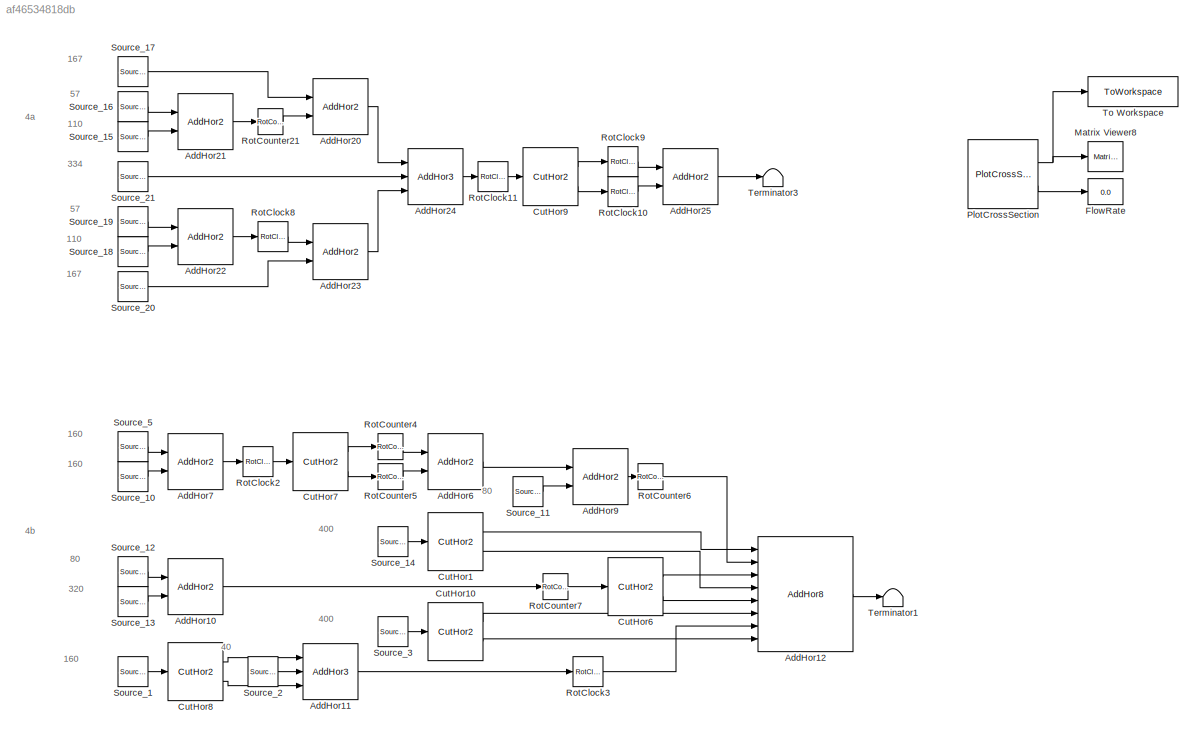
MODEL slx_af46534818db
KIND model
CONFIG AbsTol = auto
CONFIG EnableMultiTasking = off
CONFIG FixedStep = auto
CONFIG MaxStep = auto
CONFIG MinStep = auto
CONFIG RelTol = 1e-3
CONFIG SampleTimeConstraint = Unconstrained
CONFIG SolverName = VariableStepAuto
CONFIG StartTime = 0.0
CONFIG StopTime = 10.0
BLOCK [Reference] AddHor10  REF=myLib_CustomBoolean/AddHor2
  Ports = [2, 1]
  SourceBlock = myLib_CustomBoolean/AddHor2
  SourceProductName = Boolean_Custom_Library
BLOCK [Reference] AddHor11  REF=myLib_CustomBoolean/AddHor3
  Ports = [3, 1]
  SourceBlock = myLib_CustomBoolean/AddHor3
  SourceProductName = Boolean_Custom_Library
BLOCK [Reference] AddHor12  REF=myLib_CustomBoolean/AddHor8
  Ports = [8, 1]
  SourceBlock = myLib_CustomBoolean/AddHor8
  SourceProductName = Boolean_Custom_Library
BLOCK [Reference] AddHor20  REF=myLib_CustomBoolean/AddHor2
  Ports = [2, 1]
  SourceBlock = myLib_CustomBoolean/AddHor2
  SourceProductName = Boolean_Custom_Library
BLOCK [Reference] AddHor21  REF=myLib_CustomBoolean/AddHor2
  Ports = [2, 1]
  SourceBlock = myLib_CustomBoolean/AddHor2
  SourceProductName = Boolean_Custom_Library
BLOCK [Reference] AddHor22  REF=myLib_CustomBoolean/AddHor2
  Ports = [2, 1]
  SourceBlock = myLib_CustomBoolean/AddHor2
  SourceProductName = Boolean_Custom_Library
BLOCK [Reference] AddHor23  REF=myLib_CustomBoolean/AddHor2
  Ports = [2, 1]
  SourceBlock = myLib_CustomBoolean/AddHor2
  SourceProductName = Boolean_Custom_Library
BLOCK [Reference] AddHor24  REF=myLib_CustomBoolean/AddHor3
  Ports = [3, 1]
  SourceBlock = myLib_CustomBoolean/AddHor3
  SourceProductName = Boolean_Custom_Library
BLOCK [Reference] AddHor25  REF=myLib_CustomBoolean/AddHor2
  Ports = [2, 1]
  SourceBlock = myLib_CustomBoolean/AddHor2
  SourceProductName = Boolean_Custom_Library
BLOCK [Reference] AddHor6  REF=myLib_CustomBoolean/AddHor2
  Ports = [2, 1]
  SourceBlock = myLib_CustomBoolean/AddHor2
  SourceProductName = Boolean_Custom_Library
BLOCK [Reference] AddHor7  REF=myLib_CustomBoolean/AddHor2
  Ports = [2, 1]
  SourceBlock = myLib_CustomBoolean/AddHor2
  SourceProductName = Boolean_Custom_Library
BLOCK [Reference] AddHor9  REF=myLib_CustomBoolean/AddHor2
  Ports = [2, 1]
  SourceBlock = myLib_CustomBoolean/AddHor2
  SourceProductName = Boolean_Custom_Library
BLOCK [Reference] CutHor1  REF=myLib_CustomBoolean/CutHor2
  Ports = [1, 2]
  SourceBlock = myLib_CustomBoolean/CutHor2
  SourceProductName = Boolean_Custom_Library
BLOCK [Reference] CutHor10  REF=myLib_CustomBoolean/CutHor2
  Ports = [1, 2]
  SourceBlock = myLib_CustomBoolean/CutHor2
  SourceProductName = Boolean_Custom_Library
BLOCK [Reference] CutHor6  REF=myLib_CustomBoolean/CutHor2
  Ports = [1, 2]
  SourceBlock = myLib_CustomBoolean/CutHor2
  SourceProductName = Boolean_Custom_Library
BLOCK [Reference] CutHor7  REF=myLib_CustomBoolean/CutHor2
  Ports = [1, 2]
  SourceBlock = myLib_CustomBoolean/CutHor2
  SourceProductName = Boolean_Custom_Library
BLOCK [Reference] CutHor8  REF=myLib_CustomBoolean/CutHor2
  Ports = [1, 2]
  SourceBlock = myLib_CustomBoolean/CutHor2
  SourceProductName = Boolean_Custom_Library
BLOCK [Reference] CutHor9  REF=myLib_CustomBoolean/CutHor2
  Ports = [1, 2]
  SourceBlock = myLib_CustomBoolean/CutHor2
  SourceProductName = Boolean_Custom_Library
BLOCK [Display] FlowRate
  Decimation = 1
  Ports = [1]
BLOCK [Reference] Matrix Viewer8  REF=dspobslib/Matrix
Viewer
  Ports = [1]
  SourceBlock = dspobslib/Matrix\nViewer
  SourceProductBaseCode = DS
  SourceType = Matrix Viewer
BLOCK [Reference] PlotCrossSection  REF=myLib_CustomBoolean/PlotCrossSection
  Ports = [1, 2]
  SourceBlock = myLib_CustomBoolean/PlotCrossSection
  SourceProductName = Boolean_Custom_Library
  SourceType = SubSystem
BLOCK [Reference] RotClock10  REF=myLib_CustomBoolean/RotClock
  Ports = [1, 1]
  SourceBlock = myLib_CustomBoolean/RotClock
  SourceProductName = Boolean_Custom_Library
BLOCK [Reference] RotClock11  REF=myLib_CustomBoolean/RotClock
  Ports = [1, 1]
  SourceBlock = myLib_CustomBoolean/RotClock
  SourceProductName = Boolean_Custom_Library
BLOCK [Reference] RotClock2  REF=myLib_CustomBoolean/RotClock
  Ports = [1, 1]
  SourceBlock = myLib_CustomBoolean/RotClock
  SourceProductName = Boolean_Custom_Library
BLOCK [Reference] RotClock3  REF=myLib_CustomBoolean/RotClock
  Ports = [1, 1]
  SourceBlock = myLib_CustomBoolean/RotClock
  SourceProductName = Boolean_Custom_Library
BLOCK [Reference] RotClock8  REF=myLib_CustomBoolean/RotClock
  Ports = [1, 1]
  SourceBlock = myLib_CustomBoolean/RotClock
  SourceProductName = Boolean_Custom_Library
BLOCK [Reference] RotClock9  REF=myLib_CustomBoolean/RotClock
  Ports = [1, 1]
  SourceBlock = myLib_CustomBoolean/RotClock
  SourceProductName = Boolean_Custom_Library
BLOCK [Reference] RotCounter21  REF=myLib_CustomBoolean/RotCounter
  Ports = [1, 1]
  SourceBlock = myLib_CustomBoolean/RotCounter
  SourceProductName = Boolean_Custom_Library
BLOCK [Reference] RotCounter4  REF=myLib_CustomBoolean/RotCounter
  Ports = [1, 1]
  SourceBlock = myLib_CustomBoolean/RotCounter
  SourceProductName = Boolean_Custom_Library
BLOCK [Reference] RotCounter5  REF=myLib_CustomBoolean/RotCounter
  Ports = [1, 1]
  SourceBlock = myLib_CustomBoolean/RotCounter
  SourceProductName = Boolean_Custom_Library
BLOCK [Reference] RotCounter6  REF=myLib_CustomBoolean/RotCounter
  Ports = [1, 1]
  SourceBlock = myLib_CustomBoolean/RotCounter
  SourceProductName = Boolean_Custom_Library
BLOCK [Reference] RotCounter7  REF=myLib_CustomBoolean/RotCounter
  Ports = [1, 1]
  SourceBlock = myLib_CustomBoolean/RotCounter
  SourceProductName = Boolean_Custom_Library
BLOCK [Reference] Source_1  REF=myLib_CustomBoolean/Source_1
  Ports = [0, 1]
  SourceBlock = myLib_CustomBoolean/Source_1
  SourceProductName = Boolean_Custom_Library
BLOCK [Reference] Source_10  REF=myLib_CustomBoolean/Source_1
  Ports = [0, 1]
  SourceBlock = myLib_CustomBoolean/Source_1
  SourceProductName = Boolean_Custom_Library
BLOCK [Reference] Source_11  REF=myLib_CustomBoolean/Source_0
  Ports = [0, 1]
  SourceBlock = myLib_CustomBoolean/Source_0
  SourceProductName = Boolean_Custom_Library
BLOCK [Reference] Source_12  REF=myLib_CustomBoolean/Source_0
  Ports = [0, 1]
  SourceBlock = myLib_CustomBoolean/Source_0
  SourceProductName = Boolean_Custom_Library
BLOCK [Reference] Source_13  REF=myLib_CustomBoolean/Source_1
  Ports = [0, 1]
  SourceBlock = myLib_CustomBoolean/Source_1
  SourceProductName = Boolean_Custom_Library
BLOCK [Reference] Source_14  REF=myLib_CustomBoolean/Source_0
  Ports = [0, 1]
  SourceBlock = myLib_CustomBoolean/Source_0
  SourceProductName = Boolean_Custom_Library
BLOCK [Reference] Source_15  REF=myLib_CustomBoolean/Source_0
  Ports = [0, 1]
  SourceBlock = myLib_CustomBoolean/Source_0
  SourceProductName = Boolean_Custom_Library
BLOCK [Reference] Source_16  REF=myLib_CustomBoolean/Source_1
  Ports = [0, 1]
  SourceBlock = myLib_CustomBoolean/Source_1
  SourceProductName = Boolean_Custom_Library
BLOCK [Reference] Source_17  REF=myLib_CustomBoolean/Source_1
  Ports = [0, 1]
  SourceBlock = myLib_CustomBoolean/Source_1
  SourceProductName = Boolean_Custom_Library
BLOCK [Reference] Source_18  REF=myLib_CustomBoolean/Source_0
  Ports = [0, 1]
  SourceBlock = myLib_CustomBoolean/Source_0
  SourceProductName = Boolean_Custom_Library
BLOCK [Reference] Source_19  REF=myLib_CustomBoolean/Source_1
  Ports = [0, 1]
  SourceBlock = myLib_CustomBoolean/Source_1
  SourceProductName = Boolean_Custom_Library
BLOCK [Reference] Source_2  REF=myLib_CustomBoolean/Source_0
  Ports = [0, 1]
  SourceBlock = myLib_CustomBoolean/Source_0
  SourceProductName = Boolean_Custom_Library
BLOCK [Reference] Source_20  REF=myLib_CustomBoolean/Source_1
  Ports = [0, 1]
  SourceBlock = myLib_CustomBoolean/Source_1
  SourceProductName = Boolean_Custom_Library
BLOCK [Reference] Source_21  REF=myLib_CustomBoolean/Source_1
  Ports = [0, 1]
  SourceBlock = myLib_CustomBoolean/Source_1
  SourceProductName = Boolean_Custom_Library
BLOCK [Reference] Source_3  REF=myLib_CustomBoolean/Source_0
  Ports = [0, 1]
  SourceBlock = myLib_CustomBoolean/Source_0
  SourceProductName = Boolean_Custom_Library
BLOCK [Reference] Source_5  REF=myLib_CustomBoolean/Source_0
  Ports = [0, 1]
  SourceBlock = myLib_CustomBoolean/Source_0
  SourceProductName = Boolean_Custom_Library
BLOCK [Terminator] Terminator1
BLOCK [Terminator] Terminator3
BLOCK [ToWorkspace] To Workspace
  FixptAsFi = on
  MaxDataPoints = inf
  Ports = [1]
  SampleTime = 51
  VariableName = extrudateArray
ANNOTATION (root): 4a
ANNOTATION (root): 4b
ANNOTATION (root): 110
ANNOTATION (root): 160
ANNOTATION (root): 167
ANNOTATION (root): 320
ANNOTATION (root): 334
ANNOTATION (root): 400
ANNOTATION (root): 40
ANNOTATION (root): 57
ANNOTATION (root): 80
LINE AddHor10:1 -> RotCounter7:1
LINE AddHor11:1 -> RotClock3:1
LINE AddHor12:1 -> Terminator1:1
LINE AddHor20:1 -> AddHor24:1
LINE AddHor21:1 -> RotCounter21:1
LINE AddHor22:1 -> RotClock8:1
LINE AddHor23:1 -> AddHor24:3
LINE AddHor24:1 -> RotClock11:1
LINE AddHor25:1 -> Terminator3:1
LINE AddHor6:1 -> AddHor9:1
LINE AddHor7:1 -> RotClock2:1
LINE AddHor9:1 -> RotCounter6:1
LINE CutHor10:1 -> AddHor12:6
LINE CutHor10:2 -> AddHor12:8
LINE CutHor1:1 -> AddHor12:1
LINE CutHor1:2 -> AddHor12:4
LINE CutHor6:1 -> AddHor12:3
LINE CutHor6:2 -> AddHor12:5
LINE CutHor7:1 -> RotCounter4:1
LINE CutHor7:2 -> RotCounter5:1
LINE CutHor8:1 -> AddHor11:1
LINE CutHor8:2 -> AddHor11:3
LINE CutHor9:1 -> RotClock9:1
LINE CutHor9:2 -> RotClock10:1
NET PlotCrossSection:1 -> Matrix Viewer8:1, To Workspace:1
LINE PlotCrossSection:2 -> FlowRate:1
LINE RotClock10:1 -> AddHor25:2
LINE RotClock11:1 -> CutHor9:1
LINE RotClock2:1 -> CutHor7:1
LINE RotClock3:1 -> AddHor12:7
LINE RotClock8:1 -> AddHor23:1
LINE RotClock9:1 -> AddHor25:1
LINE RotCounter21:1 -> AddHor20:2
LINE RotCounter4:1 -> AddHor6:1
LINE RotCounter5:1 -> AddHor6:2
LINE RotCounter6:1 -> AddHor12:2
LINE RotCounter7:1 -> CutHor6:1
LINE Source_10:1 -> AddHor7:2
LINE Source_11:1 -> AddHor9:2
LINE Source_12:1 -> AddHor10:1
LINE Source_13:1 -> AddHor10:2
LINE Source_14:1 -> CutHor1:1
LINE Source_15:1 -> AddHor21:2
LINE Source_16:1 -> AddHor21:1
LINE Source_17:1 -> AddHor20:1
LINE Source_18:1 -> AddHor22:2
LINE Source_19:1 -> AddHor22:1
LINE Source_1:1 -> CutHor8:1
LINE Source_20:1 -> AddHor23:2
LINE Source_21:1 -> AddHor24:2
LINE Source_2:1 -> AddHor11:2
LINE Source_3:1 -> CutHor10:1
LINE Source_5:1 -> AddHor7:1
note: NET lines group one-source signal fan-out (src -> all destinations, sorted); 1:1 wires keep LINE
